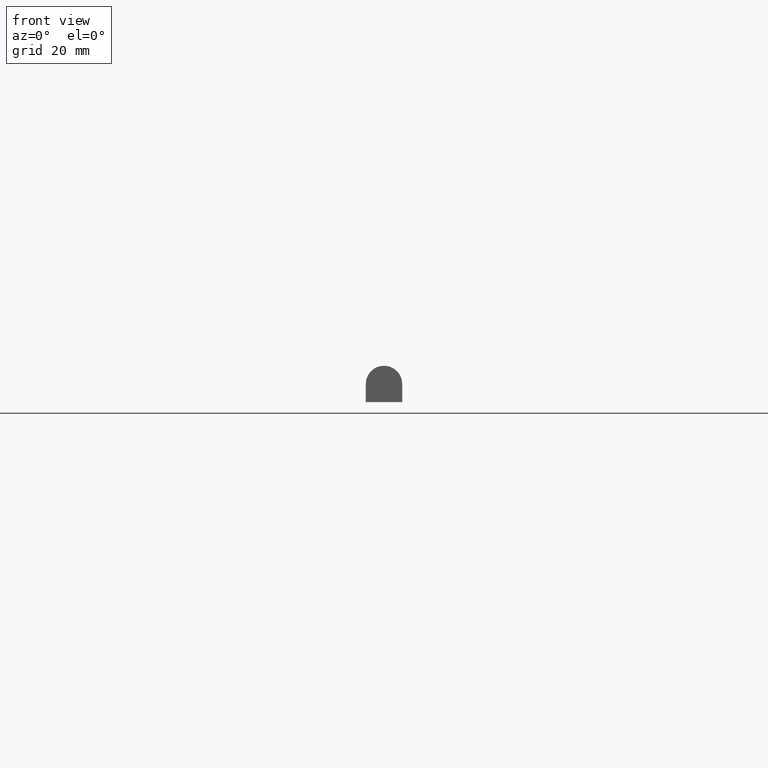
[diagram: clean part render]
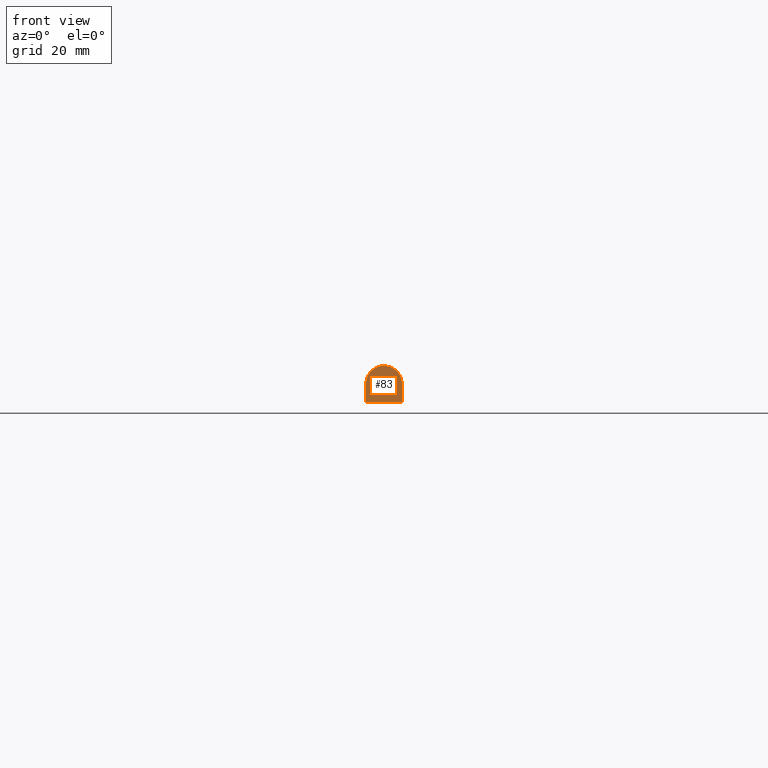
[diagram: same view with one face highlighted and labeled with its STEP entity id]
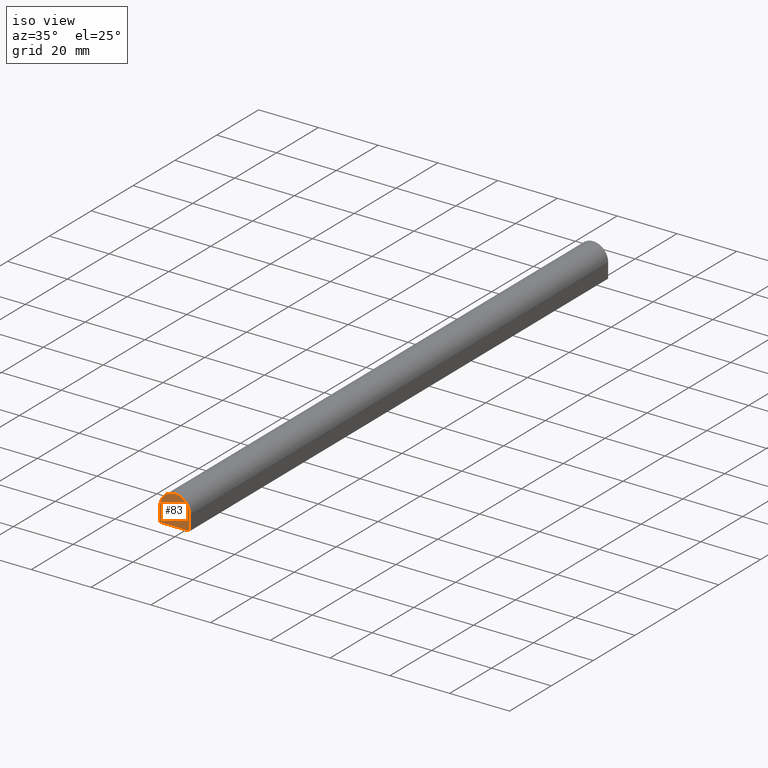
[diagram: same view with one face highlighted and labeled with its STEP entity id]
A machine part, front view. The second image highlights one B-rep face of the part: STEP entity #83.
A second angle (iso view) of the same face is appended — the face is thin or edge-on in the first view.
In plain terms, the highlighted planar face has unit normal (0, 1, 0).
Its self-contained STEP definition (entity closure, byte-faithful):
#1 = CARTESIAN_POINT ( 'NONE',  ( -5.000000000000000000, 0.0000000000000000000, 6.123031769111890200E-016 ) ) ;
#2 = CARTESIAN_POINT ( 'NONE',  ( 0.0000000000000000000, 0.0000000000000000000, 0.0000000000000000000 ) ) ;
#16 = CARTESIAN_POINT ( 'NONE',  ( 0.0000000000000000000, 0.0000000000000000000, 0.0000000000000000000 ) ) ;
#21 = CARTESIAN_POINT ( 'NONE',  ( -5.000000000000000000, 0.0000000000000000000, 0.0000000000000000000 ) ) ;
#29 = ORIENTED_EDGE ( 'NONE', *, *, #236, .T. ) ;
#33 = DIRECTION ( 'NONE',  ( -0.0000000000000000000, -0.0000000000000000000, 1.000000000000000000 ) ) ;
#40 = CIRCLE ( 'NONE', #86, 5.000000000000000000 ) ;
#45 = DIRECTION ( 'NONE',  ( 0.0000000000000000000, 0.0000000000000000000, 1.000000000000000000 ) ) ;
#46 = ORIENTED_EDGE ( 'NONE', *, *, #212, .T. ) ;
#51 = VERTEX_POINT ( 'NONE', #152 ) ;
#54 = EDGE_CURVE ( 'NONE', #90, #51, #165, .T. ) ;
#57 = VECTOR ( 'NONE', #204, 1000.000000000000000 ) ;
#61 = CARTESIAN_POINT ( 'NONE',  ( 5.000000000000000000, 0.0000000000000000000, -5.000000000000000000 ) ) ;
#68 = DIRECTION ( 'NONE',  ( 1.000000000000000000, 0.0000000000000000000, 0.0000000000000000000 ) ) ;
#72 = FACE_OUTER_BOUND ( 'NONE', #76, .T. ) ;
#74 = PLANE ( 'NONE',  #198 ) ;
#76 = EDGE_LOOP ( 'NONE', ( #199, #235, #46, #29 ) ) ;
#83 = ADVANCED_FACE ( 'NONE', ( #72 ), #74, .F. ) ;
#84 = VERTEX_POINT ( 'NONE', #1 ) ;
#86 = AXIS2_PLACEMENT_3D ( 'NONE', #2, #168, #45 ) ;
#89 = CARTESIAN_POINT ( 'NONE',  ( 5.000000000000000000, 0.0000000000000000000, 0.0000000000000000000 ) ) ;
#90 = VERTEX_POINT ( 'NONE', #61 ) ;
#122 = VECTOR ( 'NONE', #33, 1000.000000000000000 ) ;
#131 = CARTESIAN_POINT ( 'NONE',  ( 0.0000000000000000000, 0.0000000000000000000, -5.000000000000000000 ) ) ;
#140 = VECTOR ( 'NONE', #177, 1000.000000000000000 ) ;
#146 = CARTESIAN_POINT ( 'NONE',  ( -5.000000000000000000, 0.0000000000000000000, -5.000000000000000000 ) ) ;
#152 = CARTESIAN_POINT ( 'NONE',  ( 5.000000000000000000, 0.0000000000000000000, 0.0000000000000000000 ) ) ;
#165 = LINE ( 'NONE', #89, #122 ) ;
#168 = DIRECTION ( 'NONE',  ( -0.0000000000000000000, -1.000000000000000000, -0.0000000000000000000 ) ) ;
#177 = DIRECTION ( 'NONE',  ( -0.0000000000000000000, -0.0000000000000000000, -1.000000000000000000 ) ) ;
#179 = DIRECTION ( 'NONE',  ( -0.0000000000000000000, 1.000000000000000000, 0.0000000000000000000 ) ) ;
#187 = VERTEX_POINT ( 'NONE', #146 ) ;
#198 = AXIS2_PLACEMENT_3D ( 'NONE', #16, #179, #68 ) ;
#199 = ORIENTED_EDGE ( 'NONE', *, *, #231, .T. ) ;
#204 = DIRECTION ( 'NONE',  ( 1.000000000000000000, -0.0000000000000000000, -0.0000000000000000000 ) ) ;
#212 = EDGE_CURVE ( 'NONE', #51, #84, #40, .T. ) ;
#228 = LINE ( 'NONE', #131, #57 ) ;
#231 = EDGE_CURVE ( 'NONE', #187, #90, #228, .T. ) ;
#235 = ORIENTED_EDGE ( 'NONE', *, *, #54, .T. ) ;
#236 = EDGE_CURVE ( 'NONE', #84, #187, #237, .T. ) ;
#237 = LINE ( 'NONE', #21, #140 ) ;